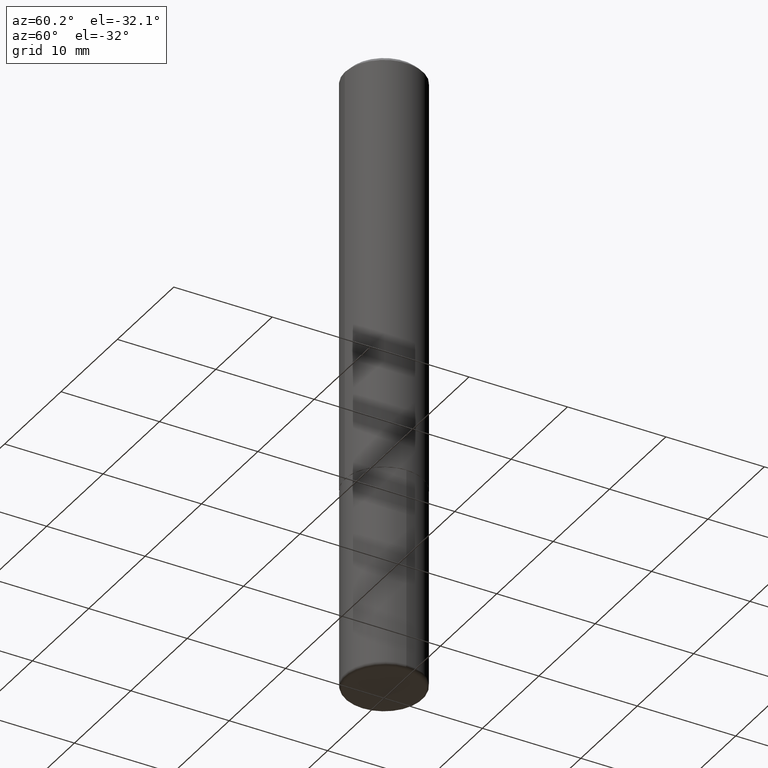
[diagram: clean part render]
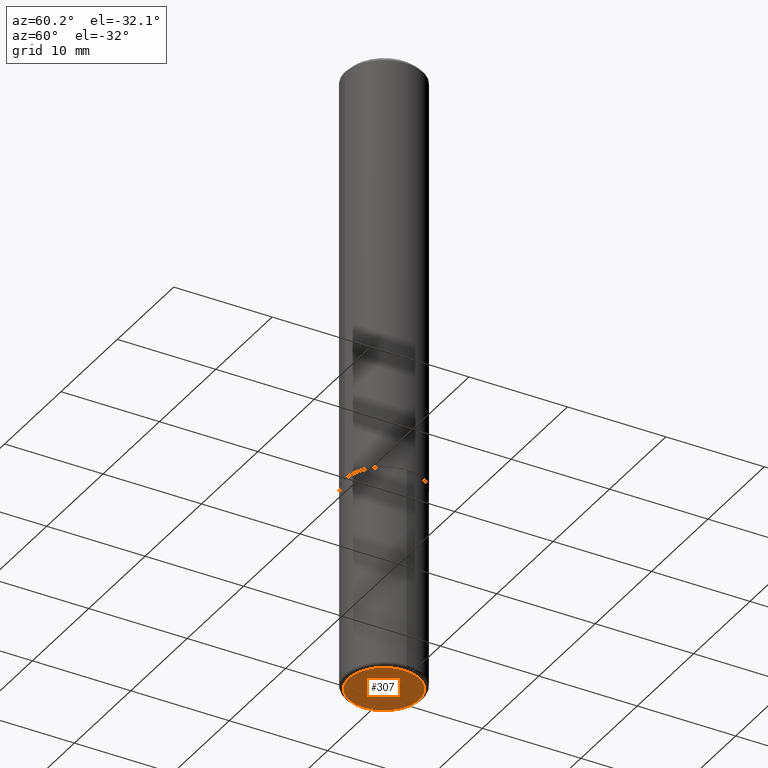
[diagram: same view with one face highlighted and labeled with its STEP entity id]
A machine part, auxiliary view. The second image highlights one B-rep face of the part: STEP entity #307.
In plain terms, the highlighted planar face has unit normal (0, -0, -1).
Its self-contained STEP definition (entity closure, byte-faithful):
#18 = AXIS2_PLACEMENT_3D ( 'NONE', #36, #290, #72 ) ;
#36 = CARTESIAN_POINT ( 'NONE',  ( 1.286637735382378644E-28, 9.415550375444000163E-16, -2.500000000000000000 ) ) ;
#39 = FACE_OUTER_BOUND ( 'NONE', #98, .T. ) ;
#44 = CIRCLE ( 'NONE', #68, 0.1412499999999999867 ) ;
#50 = CARTESIAN_POINT ( 'NONE',  ( 0.1412499999999999867, -9.715046825331048380E-15, -2.499999999999999556 ) ) ;
#68 = AXIS2_PLACEMENT_3D ( 'NONE', #395, #261, #396 ) ;
#71 = PLANE ( 'NONE',  #18 ) ;
#72 = DIRECTION ( 'NONE',  ( -1.000000000000000000, 6.982962677686265922E-15, -4.876176775795935793E-29 ) ) ;
#98 = EDGE_LOOP ( 'NONE', ( #147, #196 ) ) ;
#142 = AXIS2_PLACEMENT_3D ( 'NONE', #187, #220, #248 ) ;
#147 = ORIENTED_EDGE ( 'NONE', *, *, #152, .F. ) ;
#152 = EDGE_CURVE ( 'NONE', #384, #222, #317, .T. ) ;
#187 = CARTESIAN_POINT ( 'NONE',  ( 6.113672015462840371E-29, -8.728703347107863365E-15, -2.499999999999999556 ) ) ;
#196 = ORIENTED_EDGE ( 'NONE', *, *, #256, .F. ) ;
#220 = DIRECTION ( 'NONE',  ( -2.445468806185136597E-29, 3.491481338843145583E-15, 1.000000000000000000 ) ) ;
#222 = VERTEX_POINT ( 'NONE', #294 ) ;
#248 = DIRECTION ( 'NONE',  ( 1.000000000000000000, -6.982962677686270655E-15, 0.000000000000000000 ) ) ;
#256 = EDGE_CURVE ( 'NONE', #222, #384, #44, .T. ) ;
#261 = DIRECTION ( 'NONE',  ( -2.445468806185136597E-29, 3.491481338843145583E-15, 1.000000000000000000 ) ) ;
#290 = DIRECTION ( 'NONE',  ( 2.438088387897960049E-29, -3.491481338843145188E-15, -1.000000000000000000 ) ) ;
#294 = CARTESIAN_POINT ( 'NONE',  ( -0.1412499999999999867, -7.645584917623391438E-15, -2.499999999999999556 ) ) ;
#307 = ADVANCED_FACE ( 'NONE', ( #39 ), #71, .T. ) ;
#317 = CIRCLE ( 'NONE', #142, 0.1412499999999999867 ) ;
#384 = VERTEX_POINT ( 'NONE', #50 ) ;
#395 = CARTESIAN_POINT ( 'NONE',  ( 6.113672015462840371E-29, -8.728703347107863365E-15, -2.499999999999999556 ) ) ;
#396 = DIRECTION ( 'NONE',  ( 1.000000000000000000, -6.982962677686270655E-15, 0.000000000000000000 ) ) ;